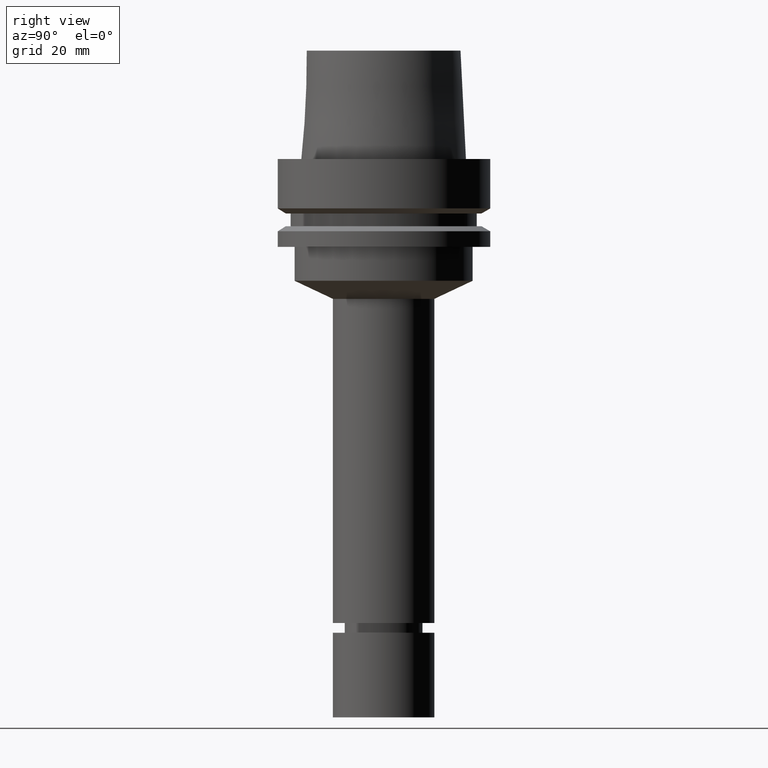
[diagram: clean part render]
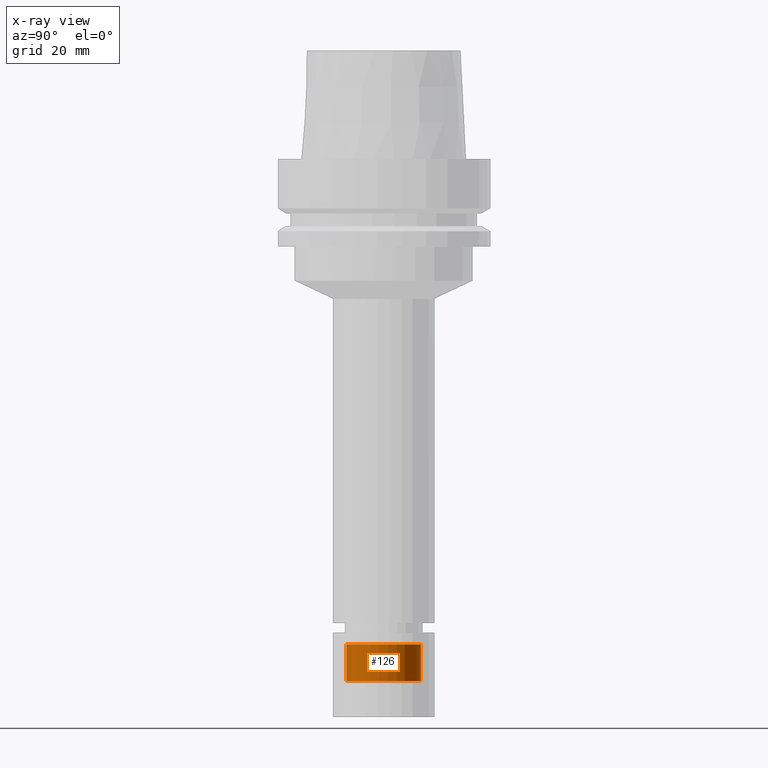
[diagram: x-ray — body ghosted, one internal face saturated and labeled with its STEP entity id]
A machine part, right view, then the same camera in x-ray: the body is ghosted and one INTERNAL B-rep face — a face not visible from any outside direction — is saturated and labeled: STEP entity #126.
In plain terms, the highlighted cylindrical surface (bore or boss wall) has radius 11 mm, axis along (-0, -0, 1).
Its self-contained STEP definition (entity closure, byte-faithful):
#91=EDGE_CURVE('Unnamed[1]',#235,#235,#236,.T.);
#126=ADVANCED_FACE('Unnamed[1]',(#288,#289),#290,.T.);
#166=EDGE_CURVE('Unnamed[1]',#351,#351,#352,.T.);
#235=VERTEX_POINT('',#431);
#236=CIRCLE('',#432,11.0000000000003);
#288=FACE_BOUND('',#496,.T.);
#289=FACE_BOUND('',#497,.T.);
#290=CYLINDRICAL_SURFACE('',#498,11.0000000000001);
#351=VERTEX_POINT('',#576);
#352=CIRCLE('',#577,10.9999999999999);
#431=CARTESIAN_POINT('',(9.44782822508095E-015,11.0000000000003,-154.294744111672));
#432=AXIS2_PLACEMENT_3D('',#654,#655,#656);
#496=EDGE_LOOP('',(#712));
#497=EDGE_LOOP('',(#713));
#498=AXIS2_PLACEMENT_3D('',#714,#715,#716);
#576=CARTESIAN_POINT('',(8.78261208507782E-015,10.9999999999999,-143.430940107672));
#577=AXIS2_PLACEMENT_3D('',#782,#783,#784);
#654=CARTESIAN_POINT('',(9.44782822508095E-015,1.88956564501619E-014,-154.294744111672));
#655=DIRECTION('',(-6.12323399573676E-017,-1.22464679914735E-016,1.0));
#656=DIRECTION('',(-1.23259516440783E-032,1.0,1.22464679914735E-016));
#712=ORIENTED_EDGE('',*,*,#166,.F.);
#713=ORIENTED_EDGE('',*,*,#91,.T.);
#714=CARTESIAN_POINT('',(9.11522015507938E-015,1.82304403101588E-014,-148.862842109672));
#715=DIRECTION('',(-6.12323399573676E-017,-1.22464679914735E-016,1.0));
#716=DIRECTION('',(-1.23259516440783E-032,1.0,1.22464679914735E-016));
#782=CARTESIAN_POINT('',(8.78261208507782E-015,1.75652241701556E-014,-143.430940107672));
#783=DIRECTION('',(-6.12323399573677E-017,-1.22464679914735E-016,1.0));
#784=DIRECTION('',(-1.23259516440783E-032,1.0,1.22464679914735E-016));